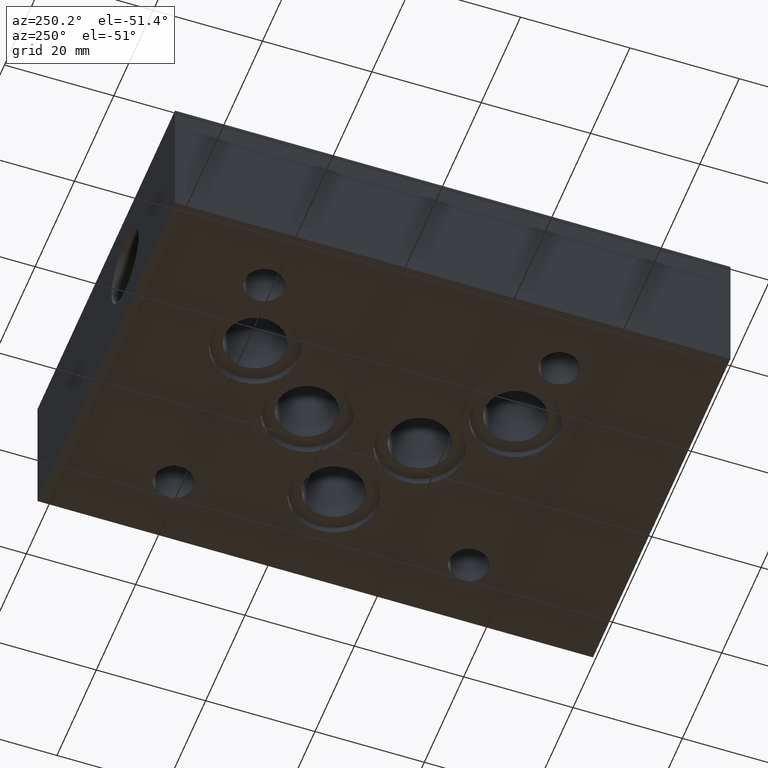
[diagram: clean part render]
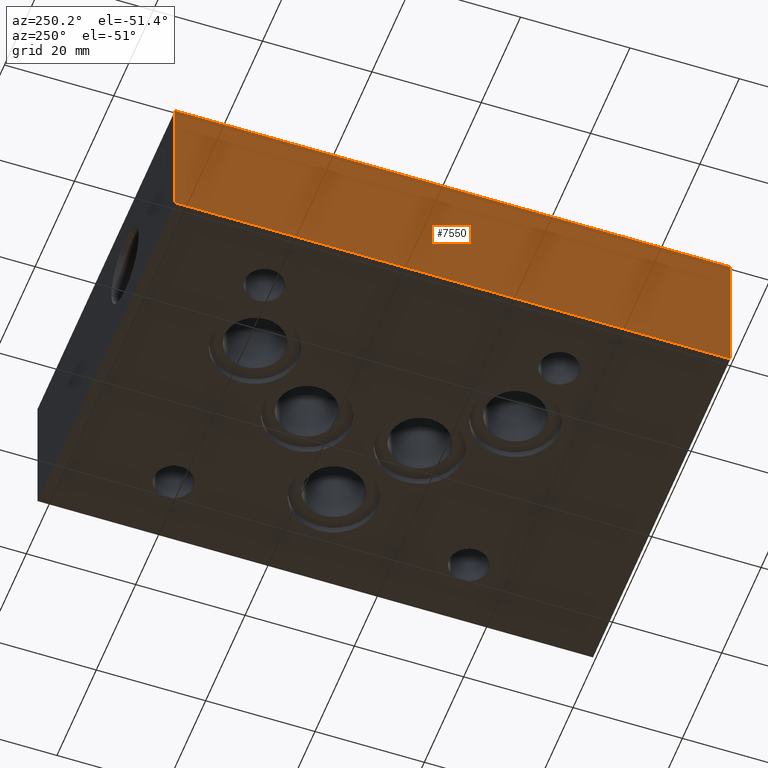
[diagram: same view with one face highlighted and labeled with its STEP entity id]
A machine part, auxiliary view. The second image highlights one B-rep face of the part: STEP entity #7550.
In plain terms, the highlighted planar face has unit normal (-1, 0, 0).
Its self-contained STEP definition (entity closure, byte-faithful):
#445=PLANE('',#7943);
#821=FACE_OUTER_BOUND('',#1235,.T.);
#1235=EDGE_LOOP('',(#6720,#6721,#6722,#6723));
#1988=LINE('',#12227,#2780);
#2048=LINE('',#12746,#2840);
#2049=LINE('',#12748,#2841);
#2050=LINE('',#12749,#2842);
#2780=VECTOR('',#9170,10.);
#2840=VECTOR('',#9486,10.);
#2841=VECTOR('',#9487,10.);
#2842=VECTOR('',#9488,10.);
#3588=VERTEX_POINT('',#12223);
#3589=VERTEX_POINT('',#12225);
#3699=VERTEX_POINT('',#12745);
#3700=VERTEX_POINT('',#12747);
#4574=EDGE_CURVE('',#3588,#3589,#1988,.T.);
#4725=EDGE_CURVE('',#3699,#3588,#2048,.T.);
#4726=EDGE_CURVE('',#3700,#3589,#2049,.T.);
#4727=EDGE_CURVE('',#3699,#3700,#2050,.T.);
#6720=ORIENTED_EDGE('',*,*,#4725,.T.);
#6721=ORIENTED_EDGE('',*,*,#4574,.T.);
#6722=ORIENTED_EDGE('',*,*,#4726,.F.);
#6723=ORIENTED_EDGE('',*,*,#4727,.F.);
#7550=ADVANCED_FACE('',(#821),#445,.T.);
#7943=AXIS2_PLACEMENT_3D('',#12744,#9484,#9485);
#9170=DIRECTION('',(0.,0.,1.));
#9484=DIRECTION('center_axis',(-1.,0.,0.));
#9485=DIRECTION('ref_axis',(0.,-1.,0.));
#9486=DIRECTION('',(0.,-1.,0.));
#9487=DIRECTION('',(0.,-1.,0.));
#9488=DIRECTION('',(0.,0.,1.));
#12223=CARTESIAN_POINT('',(0.,0.,0.));
#12225=CARTESIAN_POINT('',(0.,0.,25.4));
#12227=CARTESIAN_POINT('',(0.,0.,0.));
#12744=CARTESIAN_POINT('Origin',(0.,101.6,0.));
#12745=CARTESIAN_POINT('',(0.,101.6,0.));
#12746=CARTESIAN_POINT('',(0.,101.6,0.));
#12747=CARTESIAN_POINT('',(0.,101.6,25.4));
#12748=CARTESIAN_POINT('',(0.,101.6,25.4));
#12749=CARTESIAN_POINT('',(0.,101.6,0.));